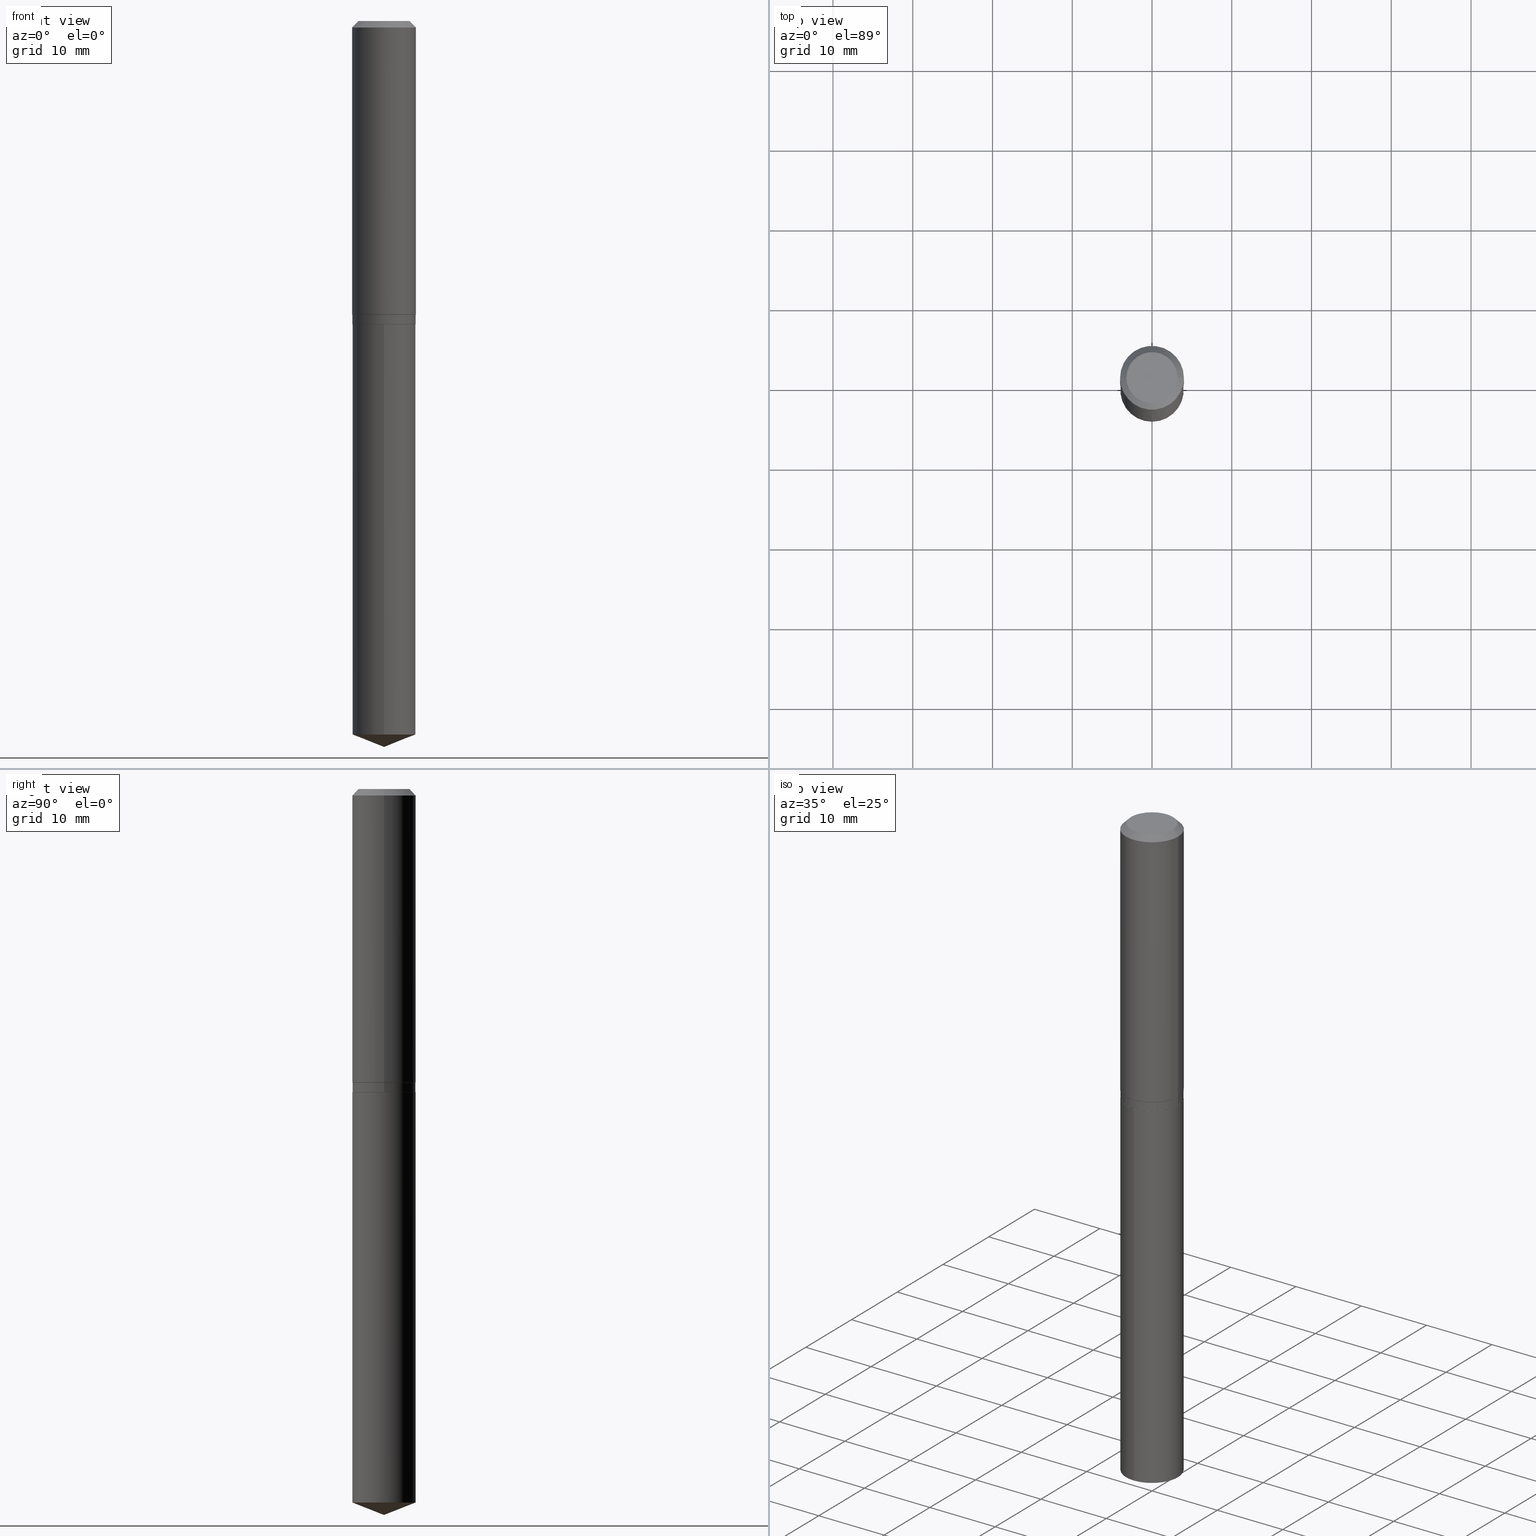
[diagram: canonical four-view strip — front | top / right | iso, engineering-drawing reading convention]
A machine part, canonical four-view strip (front | top / right | iso — engineering-drawing reading convention). The complete STEP part file that produces these views, byte-faithful:
ISO-10303-21;
HEADER;
FILE_DESCRIPTION (( 'STEP AP203' ),
    '1' );
FILE_NAME ('56451.STEP',
    '2024-04-24T17:58:02',
    ( '' ),
    ( '' ),
    'SwSTEP 2.0',
    'SolidWorks 2023',
    '' );
FILE_SCHEMA (( 'CONFIG_CONTROL_DESIGN' ));
ENDSEC;

DATA;
#1 = DIRECTION ( 'NONE',  ( -2.445468806185136597E-29, 3.491481338843145583E-15, 1.000000000000000000 ) ) ;
#2 = APPROVAL_ROLE ( '' ) ;
#3 = AXIS2_PLACEMENT_3D ( 'NONE', #153, #490, #5 ) ;
#4 = DIRECTION ( 'NONE',  ( -2.445483652818804664E-29, 3.491460077618715012E-15, 1.000000000000000000 ) ) ;
#5 = DIRECTION ( 'NONE',  ( 1.000000000000000000, -6.982962677686269077E-15, 0.000000000000000000 ) ) ;
#6 = PRODUCT ( '56451', '56451', '', ( #407 ) ) ;
#7 = DATE_AND_TIME ( #267, #165 ) ;
#8 = DIRECTION ( 'NONE',  ( -2.445468806185136597E-29, 3.491481338843145583E-15, 1.000000000000000000 ) ) ;
#9 = CIRCLE ( 'NONE', #66, 0.1562500000000000000 ) ;
#10 = DIRECTION ( 'NONE',  ( 1.000000000000000000, -6.982962677686265922E-15, 0.000000000000000000 ) ) ;
#11 = PRODUCT_DEFINITION_FORMATION_WITH_SPECIFIED_SOURCE ( 'ANY', '', #6, .NOT_KNOWN. ) ;
#12 = ORIENTED_EDGE ( 'NONE', *, *, #163, .F. ) ;
#13 = CARTESIAN_POINT ( 'NONE',  ( -8.751673825769712260E-28, 1.249491249005610537E-13, 35.78707874015748303 ) ) ;
#14 = EDGE_CURVE ( 'NONE', #363, #253, #29, .T. ) ;
#15 = ORIENTED_EDGE ( 'NONE', *, *, #343, .F. ) ;
#16 = EDGE_CURVE ( 'NONE', #434, #386, #478, .T. ) ;
#17 = CARTESIAN_POINT ( 'NONE',  ( -0.1562500000000000000, -3.949282583492445473E-15, -1.449099999999999833 ) ) ;
#18 = EDGE_LOOP ( 'NONE', ( #482, #49, #147, #128 ) ) ;
#19 = APPROVAL ( #417, 'UNSPECIFIED' ) ;
#20 = CARTESIAN_POINT ( 'NONE',  ( 3.659399521575438742E-29, -5.224652675444883351E-15, -1.496400000000000174 ) ) ;
#21 = AXIS2_PLACEMENT_3D ( 'NONE', #410, #404, #137 ) ;
#22 = ORIENTED_EDGE ( 'NONE', *, *, #415, .F. ) ;
#23 = DIRECTION ( 'NONE',  ( -2.445483652818804664E-29, 3.491460077618715012E-15, 1.000000000000000000 ) ) ;
#24 = DESIGN_CONTEXT ( 'detailed design', #214, 'design' ) ;
#25 = ORIENTED_EDGE ( 'NONE', *, *, #163, .T. ) ;
#26 = DIRECTION ( 'NONE',  ( -6.982962677686265133E-15, -1.000000000000000000, 3.496765431890256920E-15 ) ) ;
#27 = EDGE_LOOP ( 'NONE', ( #402, #465, #400, #398 ) ) ;
#28 = DIRECTION ( 'NONE',  ( 1.000000000000000000, -6.982962677686269077E-15, 0.000000000000000000 ) ) ;
#29 = LINE ( 'NONE', #70, #173 ) ;
#30 = AXIS2_PLACEMENT_3D ( 'NONE', #318, #23, #168 ) ;
#31 = CARTESIAN_POINT ( 'NONE',  ( 3.659399521575439863E-29, -5.224652675444884140E-15, -1.496400000000000396 ) ) ;
#32 = ADVANCED_FACE ( 'NONE', ( #175 ), #469, .T. ) ;
#33 = LINE ( 'NONE', #171, #373 ) ;
#34 = ORIENTED_EDGE ( 'NONE', *, *, #14, .F. ) ;
#35 = EDGE_LOOP ( 'NONE', ( #286, #211, #355, #371 ) ) ;
#36 = CIRCLE ( 'NONE', #180, 0.1575000000000000011 ) ;
#37 = AXIS2_PLACEMENT_3D ( 'NONE', #20, #285, #166 ) ;
#38 = ADVANCED_FACE ( 'NONE', ( #291 ), #255, .T. ) ;
#39 = CARTESIAN_POINT ( 'NONE',  ( 3.659399521575438742E-29, -5.224652675444883351E-15, -1.496400000000000174 ) ) ;
#40 = DIRECTION ( 'NONE',  ( -1.000000000000000000, 6.982962677686265922E-15, 0.000000000000000000 ) ) ;
#41 = DIRECTION ( 'NONE',  ( -2.445468806185136597E-29, 3.491481338843145583E-15, 1.000000000000000000 ) ) ;
#42 = CYLINDRICAL_SURFACE ( 'NONE', #438, 0.1575000000000000844 ) ;
#43 = CIRCLE ( 'NONE', #3, 0.1562500000000000000 ) ;
#44 = AXIS2_PLACEMENT_3D ( 'NONE', #243, #52, #462 ) ;
#45 = DIRECTION ( 'NONE',  ( -2.445468806185136597E-29, 3.491481338843145583E-15, 1.000000000000000000 ) ) ;
#46 = CARTESIAN_POINT ( 'NONE',  ( 8.762168317674783458E-29, -1.250990145810785612E-14, -3.583000000000000185 ) ) ;
#47 = APPROVAL_DATE_TIME ( #87, #252 ) ;
#48 = FACE_OUTER_BOUND ( 'NONE', #18, .T. ) ;
#49 = ORIENTED_EDGE ( 'NONE', *, *, #263, .T. ) ;
#50 = EDGE_CURVE ( 'NONE', #288, #335, #372, .T. ) ;
#51 = CARTESIAN_POINT ( 'NONE',  ( -1.091087918388442491E-15, -0.1562500000000052180, -1.496399999999999730 ) ) ;
#52 = DIRECTION ( 'NONE',  ( -2.445468806185136597E-29, 3.491481338843145583E-15, 1.000000000000000000 ) ) ;
#53 = ORIENTED_EDGE ( 'NONE', *, *, #376, .F. ) ;
#54 = DIRECTION ( 'NONE',  ( -2.445483652818804664E-29, 3.491460077618715012E-15, 1.000000000000000000 ) ) ;
#55 = CARTESIAN_POINT ( 'NONE',  ( 7.703226739483226971E-31, -1.099816621735597538E-16, -0.03150000000000019451 ) ) ;
#56 = AXIS2_PLACEMENT_3D ( 'NONE', #130, #54, #433 ) ;
#57 = CONICAL_SURFACE ( 'NONE', #445, 0.1557499999999999996, 0.7853981633972775267 ) ;
#58 = ORIENTED_EDGE ( 'NONE', *, *, #151, .F. ) ;
#59 = CC_DESIGN_PERSON_AND_ORGANIZATION_ASSIGNMENT ( #454, #117, ( #293 ) ) ;
#60 = APPLICATION_PROTOCOL_DEFINITION ( 'international standard', 'config_control_design', 1994, #80 ) ;
#61 = DIRECTION ( 'NONE',  ( -2.445468806185136597E-29, 3.491481338843145583E-15, 1.000000000000000000 ) ) ;
#62 = ORIENTED_EDGE ( 'NONE', *, *, #450, .T. ) ;
#63 = EDGE_CURVE ( 'NONE', #288, #204, #238, .T. ) ;
#64 = CARTESIAN_POINT ( 'NONE',  ( -0.1562500000000000000, 1.110223024625156540E-15, -7.685836078523291160E-30 ) ) ;
#65 = CARTESIAN_POINT ( 'NONE',  ( -0.1557499999999999996, -4.117982364498528498E-15, -1.496400000000000396 ) ) ;
#66 = AXIS2_PLACEMENT_3D ( 'NONE', #388, #92, #160 ) ;
#67 = CARTESIAN_POINT ( 'NONE',  ( 0.000000000000000000, 0.000000000000000000, 0.000000000000000000 ) ) ;
#68 = EDGE_LOOP ( 'NONE', ( #178, #251 ) ) ;
#69 = MANIFOLD_SOLID_BREP ( 'Body-Move/Copy2[2]', #164 ) ;
#70 = CARTESIAN_POINT ( 'NONE',  ( 8.762123495044533825E-29, -1.250996508870033127E-14, -3.583000000000000185 ) ) ;
#71 = DIRECTION ( 'NONE',  ( 1.000000000000000000, -6.982962677686269077E-15, 0.000000000000000000 ) ) ;
#72 = ORGANIZATION ( 'UNSPECIFIED', 'UNSPECIFIED', '' ) ;
#73 = CARTESIAN_POINT ( 'NONE',  ( 0.1575000000000000011, -1.190510096822576026E-15, -0.03150000000000019451 ) ) ;
#74 = DIRECTION ( 'NONE',  ( 1.000000000000000000, -6.982962677686265922E-15, 0.000000000000000000 ) ) ;
#75 = CARTESIAN_POINT ( 'NONE',  ( 0.1575000000000000844, -1.099816621735587677E-15, 7.679978421878603638E-30 ) ) ;
#76 = ADVANCED_FACE ( 'NONE', ( #443 ), #96, .T. ) ;
#77 = CARTESIAN_POINT ( 'NONE',  ( 0.1260000000000000009, -1.027466422270894443E-15, 3.860086710919128072E-18 ) ) ;
#78 = VECTOR ( 'NONE', #484, 39.37007874015748143 ) ;
#79 = PLANE ( 'NONE',  #129 ) ;
#80 = APPLICATION_CONTEXT ( 'configuration controlled 3d designs of mechanical parts and assemblies' ) ;
#81 = PERSON_AND_ORGANIZATION_ROLE ( 'design_supplier' ) ;
#82 = CARTESIAN_POINT ( 'NONE',  ( -0.1575000000000000011, 9.898349595620272334E-16, -0.03150000000000019451 ) ) ;
#83 = EDGE_CURVE ( 'NONE', #317, #434, #345, .T. ) ;
#84 = APPROVAL_ROLE ( '' ) ;
#85 = CARTESIAN_POINT ( 'NONE',  ( -0.1575000000000001676, -3.936036447621888679E-15, -1.447849999999999637 ) ) ;
#86 = ORIENTED_EDGE ( 'NONE', *, *, #415, .T. ) ;
#87 = DATE_AND_TIME ( #123, #181 ) ;
#88 = VECTOR ( 'NONE', #356, 39.37007874015748143 ) ;
#89 = CARTESIAN_POINT ( 'NONE',  ( 0.1557499999999999996, -6.312249112494520306E-15, -1.496400000000000396 ) ) ;
#90 = CIRCLE ( 'NONE', #229, 0.1260000000000000009 ) ;
#91 = ORIENTED_EDGE ( 'NONE', *, *, #310, .T. ) ;
#92 = DIRECTION ( 'NONE',  ( -2.445468806185136597E-29, 3.491481338843145583E-15, 1.000000000000000000 ) ) ;
#93 = DIRECTION ( 'NONE',  ( -2.445483652818804664E-29, 3.491460077618715012E-15, 1.000000000000000000 ) ) ;
#94 = ORIENTED_EDGE ( 'NONE', *, *, #240, .F. ) ;
#95 = CYLINDRICAL_SURFACE ( 'NONE', #97, 0.1562500000000000000 ) ;
#96 = CONICAL_SURFACE ( 'NONE', #459, 0.1557499999999999996, 0.7853981633972775267 ) ;
#97 = AXIS2_PLACEMENT_3D ( 'NONE', #67, #476, #294 ) ;
#98 = ORIENTED_EDGE ( 'NONE', *, *, #248, .T. ) ;
#99 =( CONVERSION_BASED_UNIT ( 'INCH', #439 ) LENGTH_UNIT ( ) NAMED_UNIT ( #106 ) );
#100 = VERTEX_POINT ( 'NONE', #266 ) ;
#101 = PERSON_AND_ORGANIZATION ( #364, #72 ) ;
#102 = ORIENTED_EDGE ( 'NONE', *, *, #330, .F. ) ;
#103 = ORIENTED_EDGE ( 'NONE', *, *, #330, .T. ) ;
#104 = AXIS2_PLACEMENT_3D ( 'NONE', #39, #4, #149 ) ;
#105 = APPROVAL_PERSON_ORGANIZATION ( #191, #19, #274 ) ;
#106 = DIMENSIONAL_EXPONENTS ( 1.000000000000000000, 0.000000000000000000, 0.000000000000000000, 0.000000000000000000, 0.000000000000000000, 0.000000000000000000, 0.000000000000000000 ) ;
#107 = CARTESIAN_POINT ( 'NONE',  ( 0.1575000000000001676, -6.154957878179636918E-15, -1.447849999999999637 ) ) ;
#108 = ORIENTED_EDGE ( 'NONE', *, *, #185, .F. ) ;
#109 = FACE_OUTER_BOUND ( 'NONE', #408, .T. ) ;
#110 = FACE_OUTER_BOUND ( 'NONE', #242, .T. ) ;
#111 = CIRCLE ( 'NONE', #444, 0.1575000000000001676 ) ;
#112 = AXIS2_PLACEMENT_3D ( 'NONE', #287, #442, #28 ) ;
#113 = CARTESIAN_POINT ( 'NONE',  ( -4.719860820353100843E-47, 6.738710358733633822E-33, 1.930043355456229866E-18 ) ) ;
#114 = PERSON_AND_ORGANIZATION ( #364, #72 ) ;
#115 = EDGE_CURVE ( 'NONE', #434, #284, #217, .T. ) ;
#116 = FACE_OUTER_BOUND ( 'NONE', #162, .T. ) ;
#117 = PERSON_AND_ORGANIZATION_ROLE ( 'creator' ) ;
#118 = DIRECTION ( 'NONE',  ( 1.000000000000000000, -6.982962677686266711E-15, 4.876176775795936353E-29 ) ) ;
#119 = PERSON_AND_ORGANIZATION ( #364, #72 ) ;
#120 = AXIS2_PLACEMENT_3D ( 'NONE', #259, #477, #480 ) ;
#121 = CONICAL_SURFACE ( 'NONE', #187, 99.94676754583984746, 1.195550537616119069 ) ;
#122 = PLANE ( 'NONE',  #341 ) ;
#123 = CALENDAR_DATE ( 2024, 24, 4 ) ;
#124 = DIRECTION ( 'NONE',  ( -2.445483652818804664E-29, 3.491460077618715012E-15, 1.000000000000000000 ) ) ;
#125 = VERTEX_POINT ( 'NONE', #77 ) ;
#126 = PERSON_AND_ORGANIZATION_ROLE ( 'creator' ) ;
#127 = DIRECTION ( 'NONE',  ( 2.445468806185136597E-29, -3.491481338843145583E-15, -1.000000000000000000 ) ) ;
#128 = ORIENTED_EDGE ( 'NONE', *, *, #278, .F. ) ;
#129 = AXIS2_PLACEMENT_3D ( 'NONE', #113, #416, #225 ) ;
#130 = CARTESIAN_POINT ( 'NONE',  ( 3.659399521575438742E-29, -5.224652675444883351E-15, -1.496400000000000174 ) ) ;
#131 = ORIENTED_EDGE ( 'NONE', *, *, #14, .T. ) ;
#132 = CC_DESIGN_DATE_AND_TIME_ASSIGNMENT ( #429, #269, ( #293 ) ) ;
#133 = LINE ( 'NONE', #82, #146 ) ;
#134 = ORIENTED_EDGE ( 'NONE', *, *, #50, .F. ) ;
#135 = DIRECTION ( 'NONE',  ( -2.445468806185136597E-29, 3.491481338843145583E-15, 1.000000000000000000 ) ) ;
#136 = AXIS2_PLACEMENT_3D ( 'NONE', #212, #437, #142 ) ;
#137 = DIRECTION ( 'NONE',  ( 1.000000000000000000, -6.982962677686267499E-15, 4.876176775795936353E-29 ) ) ;
#138 = ADVANCED_FACE ( 'NONE', ( #109 ), #337, .T. ) ;
#139 = DIRECTION ( 'NONE',  ( 1.000000000000000000, 0.000000000000000000, 0.000000000000000000 ) ) ;
#140 = EDGE_LOOP ( 'NONE', ( #12, #131, #292 ) ) ;
#141 = APPROVAL ( #194, 'UNSPECIFIED' ) ;
#142 = DIRECTION ( 'NONE',  ( 6.982962677686265922E-15, 1.000000000000000000, -3.491460077618715012E-15 ) ) ;
#143 = ORIENTED_EDGE ( 'NONE', *, *, #63, .F. ) ;
#144 = FACE_OUTER_BOUND ( 'NONE', #441, .T. ) ;
#145 = EDGE_LOOP ( 'NONE', ( #236, #338, #103, #167 ) ) ;
#146 = VECTOR ( 'NONE', #425, 39.37007874015748143 ) ;
#147 = ORIENTED_EDGE ( 'NONE', *, *, #170, .F. ) ;
#148 = CARTESIAN_POINT ( 'NONE',  ( 3.658176787172346501E-29, -5.222906934775461847E-15, -1.495900000000000230 ) ) ;
#149 = DIRECTION ( 'NONE',  ( -6.982962677686265133E-15, -1.000000000000000000, 3.496765431890256920E-15 ) ) ;
#150 = VECTOR ( 'NONE', #418, 39.37007874015748143 ) ;
#151 = EDGE_CURVE ( 'NONE', #386, #434, #111, .T. ) ;
#152 = COORDINATED_UNIVERSAL_TIME_OFFSET ( 5, 0, .BEHIND. ) ;
#153 = CARTESIAN_POINT ( 'NONE',  ( 3.543728847042880911E-29, -5.059505608117602014E-15, -1.449099999999999833 ) ) ;
#154 = COORDINATED_UNIVERSAL_TIME_OFFSET ( 5, 0, .BEHIND. ) ;
#155 = DIRECTION ( 'NONE',  ( 1.000000000000000000, -6.982962677686267499E-15, 4.876176775795936353E-29 ) ) ;
#156 = PERSON_AND_ORGANIZATION ( #364, #72 ) ;
#157 = DIRECTION ( 'NONE',  ( 1.000000000000000000, -6.982962677686267499E-15, 0.000000000000000000 ) ) ;
#158 = AXIS2_PLACEMENT_3D ( 'NONE', #241, #127, #430 ) ;
#159 = CYLINDRICAL_SURFACE ( 'NONE', #56, 0.1562500000000000000 ) ;
#160 = DIRECTION ( 'NONE',  ( 1.000000000000000000, -6.982962677686269077E-15, 0.000000000000000000 ) ) ;
#161 = DIRECTION ( 'NONE',  ( -2.438088387897960049E-29, 3.491481338843145188E-15, 1.000000000000000000 ) ) ;
#162 = EDGE_LOOP ( 'NONE', ( #446, #86, #102, #207 ) ) ;
#163 = EDGE_CURVE ( 'NONE', #363, #333, #339, .T. ) ;
#164 = CLOSED_SHELL ( 'NONE', ( #76, #401, #183, #449, #483, #220, #221, #38, #138, #256, #301, #466 ) ) ;
#165 = LOCAL_TIME ( 13, 58, 2.000000000000000000, #234 ) ;
#166 = DIRECTION ( 'NONE',  ( -6.982962677686265133E-15, -1.000000000000000000, 3.496765431890256920E-15 ) ) ;
#167 = ORIENTED_EDGE ( 'NONE', *, *, #310, .F. ) ;
#168 = DIRECTION ( 'NONE',  ( -6.982962677686265133E-15, -1.000000000000000000, 3.496765431890256920E-15 ) ) ;
#169 = ORIENTED_EDGE ( 'NONE', *, *, #248, .F. ) ;
#170 = EDGE_CURVE ( 'NONE', #245, #193, #249, .T. ) ;
#171 = CARTESIAN_POINT ( 'NONE',  ( 0.1562500000000000000, -1.091087918388479174E-15, 7.619026212181150377E-30 ) ) ;
#172 = VERTEX_POINT ( 'NONE', #262 ) ;
#173 = VECTOR ( 'NONE', #215, 39.37007874015748143 ) ;
#174 = CIRCLE ( 'NONE', #299, 0.1562500000000000000 ) ;
#175 = FACE_OUTER_BOUND ( 'NONE', #392, .T. ) ;
#176 = DIRECTION ( 'NONE',  ( -2.445468806185136597E-29, 3.491481338843145583E-15, 1.000000000000000000 ) ) ;
#177 = CARTESIAN_POINT ( 'NONE',  ( 3.659399521575439863E-29, -5.224652675444884140E-15, -1.496400000000000396 ) ) ;
#178 = ORIENTED_EDGE ( 'NONE', *, *, #170, .T. ) ;
#179 = ORIENTED_EDGE ( 'NONE', *, *, #277, .T. ) ;
#180 = AXIS2_PLACEMENT_3D ( 'NONE', #55, #315, #360 ) ;
#181 = LOCAL_TIME ( 13, 58, 2.000000000000000000, #226 ) ;
#182 = CARTESIAN_POINT ( 'NONE',  ( 0.000000000000000000, 0.000000000000000000, 0.000000000000000000 ) ) ;
#183 = ADVANCED_FACE ( 'NONE', ( #116 ), #42, .T. ) ;
#184 = CARTESIAN_POINT ( 'NONE',  ( 0.1557499999999999996, -6.312249112494520306E-15, -1.496400000000000396 ) ) ;
#185 = EDGE_CURVE ( 'NONE', #100, #125, #218, .T. ) ;
#186 = DIRECTION ( 'NONE',  ( 1.000000000000000000, -6.982962677686265922E-15, 0.000000000000000000 ) ) ;
#187 = AXIS2_PLACEMENT_3D ( 'NONE', #13, #124, #323 ) ;
#188 = CALENDAR_DATE ( 2024, 24, 4 ) ;
#189 = CARTESIAN_POINT ( 'NONE',  ( 3.659399521575439863E-29, -5.224652675444884140E-15, -1.496400000000000396 ) ) ;
#190 = DIRECTION ( 'NONE',  ( -2.445483652818804384E-29, 3.491460077618715012E-15, 1.000000000000000000 ) ) ;
#191 = PERSON_AND_ORGANIZATION ( #364, #72 ) ;
#192 = LINE ( 'NONE', #89, #88 ) ;
#193 = VERTEX_POINT ( 'NONE', #344 ) ;
#194 = APPROVAL_STATUS ( 'not_yet_approved' ) ;
#195 = CARTESIAN_POINT ( 'NONE',  ( 7.703226739483226971E-31, -1.099816621735597538E-16, -0.03150000000000019451 ) ) ;
#196 = CYLINDRICAL_SURFACE ( 'NONE', #37, 0.1562500000000000000 ) ;
#197 = VERTEX_POINT ( 'NONE', #453 ) ;
#198 = FACE_OUTER_BOUND ( 'NONE', #463, .T. ) ;
#199 = AXIS2_PLACEMENT_3D ( 'NONE', #203, #328, #139 ) ;
#200 = LINE ( 'NONE', #51, #281 ) ;
#201 = ORIENTED_EDGE ( 'NONE', *, *, #423, .F. ) ;
#202 = EDGE_CURVE ( 'NONE', #317, #197, #43, .T. ) ;
#203 = CARTESIAN_POINT ( 'NONE',  ( 0.000000000000000000, 0.000000000000000000, 0.000000000000000000 ) ) ;
#204 = VERTEX_POINT ( 'NONE', #184 ) ;
#205 = CC_DESIGN_PERSON_AND_ORGANIZATION_ASSIGNMENT ( #230, #126, ( #11 ) ) ;
#206 =( LENGTH_UNIT ( ) NAMED_UNIT ( * ) SI_UNIT ( $, .METRE. ) );
#207 = ORIENTED_EDGE ( 'NONE', *, *, #115, .F. ) ;
#208 = VECTOR ( 'NONE', #264, 39.37007874015748854 ) ;
#209 = CARTESIAN_POINT ( 'NONE',  ( 8.611629832048654123E-29, -1.229503910156575525E-14, -3.521451488185165957 ) ) ;
#210 = CC_DESIGN_SECURITY_CLASSIFICATION ( #250, ( #11 ) ) ;
#211 = ORIENTED_EDGE ( 'NONE', *, *, #414, .T. ) ;
#212 = CARTESIAN_POINT ( 'NONE',  ( 3.659399521575438742E-29, -5.224652675444883351E-15, -1.496400000000000174 ) ) ;
#213 = ORIENTED_EDGE ( 'NONE', *, *, #331, .T. ) ;
#214 = APPLICATION_CONTEXT ( 'configuration controlled 3d designs of mechanical parts and assemblies' ) ;
#215 = DIRECTION ( 'NONE',  ( -6.497071151882118258E-15, -0.9304175679820244627, 0.3665012267242974686 ) ) ;
#216 = UNCERTAINTY_MEASURE_WITH_UNIT (LENGTH_MEASURE( 1.000000000000000082E-05 ), #99, 'distance_accuracy_value', 'NONE');
#217 = LINE ( 'NONE', #75, #150 ) ;
#218 = CIRCLE ( 'NONE', #379, 0.1260000000000000009 ) ;
#219 = CONICAL_SURFACE ( 'NONE', #112, 0.1562500000000000000, 0.7853981633974482790 ) ;
#220 = ADVANCED_FACE ( 'NONE', ( #312 ), #457, .T. ) ;
#221 = ADVANCED_FACE ( 'NONE', ( #110 ), #305, .T. ) ;
#222 = DIRECTION ( 'NONE',  ( 0.7071067811865452413, -7.319954787623248157E-15, -0.7071067811865497932 ) ) ;
#223 = DIRECTION ( 'NONE',  ( -2.445483652818804664E-29, 3.491460077618715012E-15, 1.000000000000000000 ) ) ;
#224 = CC_DESIGN_PERSON_AND_ORGANIZATION_ASSIGNMENT ( #156, #387, ( #250 ) ) ;
#225 = DIRECTION ( 'NONE',  ( -1.000000000000000000, 6.982962677686265922E-15, -4.876176775795935793E-29 ) ) ;
#226 = COORDINATED_UNIVERSAL_TIME_OFFSET ( 5, 0, .BEHIND. ) ;
#227 = CARTESIAN_POINT ( 'NONE',  ( 7.703226739483226971E-31, -1.099816621735597538E-16, -0.03150000000000019451 ) ) ;
#228 = CLOSED_SHELL ( 'NONE', ( #336, #32, #365, #316, #467 ) ) ;
#229 = AXIS2_PLACEMENT_3D ( 'NONE', #326, #135, #254 ) ;
#230 = PERSON_AND_ORGANIZATION ( #364, #72 ) ;
#231 = CARTESIAN_POINT ( 'NONE',  ( 1.110223024625193025E-15, 0.1562499999999947820, -1.496400000000000841 ) ) ;
#232 = SECURITY_CLASSIFICATION_LEVEL ( 'unclassified' ) ;
#233 = CARTESIAN_POINT ( 'NONE',  ( 0.1575000000000000011, -1.209798283909146741E-15, -0.03150000000000019451 ) ) ;
#234 = COORDINATED_UNIVERSAL_TIME_OFFSET ( 5, 0, .BEHIND. ) ;
#235 = DIRECTION ( 'NONE',  ( 1.000000000000000000, -6.982962677686265922E-15, 4.876176775795935793E-29 ) ) ;
#236 = ORIENTED_EDGE ( 'NONE', *, *, #450, .F. ) ;
#237 = CALENDAR_DATE ( 2024, 24, 4 ) ;
#238 = CIRCLE ( 'NONE', #257, 0.1557499999999999996 ) ;
#239 = LOCAL_TIME ( 13, 58, 2.000000000000000000, #346 ) ;
#240 = EDGE_CURVE ( 'NONE', #125, #284, #270, .T. ) ;
#241 = CARTESIAN_POINT ( 'NONE',  ( 7.703226739483226971E-31, -1.099816621735597538E-16, -0.03150000000000019451 ) ) ;
#242 = EDGE_LOOP ( 'NONE', ( #431, #447, #471, #58 ) ) ;
#243 = CARTESIAN_POINT ( 'NONE',  ( 3.659399521575439863E-29, -5.224652675444884140E-15, -1.496400000000000396 ) ) ;
#244 = PRODUCT_DEFINITION_SHAPE ( 'NONE', 'NONE',  #293 ) ;
#245 = VERTEX_POINT ( 'NONE', #303 ) ;
#246 = DIRECTION ( 'NONE',  ( -6.982962677686265133E-15, -1.000000000000000000, 3.496765431890256920E-15 ) ) ;
#247 = ORIENTED_EDGE ( 'NONE', *, *, #432, .F. ) ;
#248 = EDGE_CURVE ( 'NONE', #335, #488, #420, .T. ) ;
#249 = CIRCLE ( 'NONE', #104, 0.1562500000000000000 ) ;
#250 = SECURITY_CLASSIFICATION ( '', '', #232 ) ;
#251 = ORIENTED_EDGE ( 'NONE', *, *, #394, .T. ) ;
#252 = APPROVAL ( #272, 'UNSPECIFIED' ) ;
#253 = VERTEX_POINT ( 'NONE', #374 ) ;
#254 = DIRECTION ( 'NONE',  ( 1.000000000000000000, -6.982962677686265922E-15, 4.876281427513067258E-29 ) ) ;
#255 = CYLINDRICAL_SURFACE ( 'NONE', #21, 0.1575000000000000844 ) ;
#256 = ADVANCED_FACE ( 'NONE', ( #340 ), #79, .F. ) ;
#257 = AXIS2_PLACEMENT_3D ( 'NONE', #31, #176, #295 ) ;
#258 = CIRCLE ( 'NONE', #30, 0.1562500000000000000 ) ;
#259 = CARTESIAN_POINT ( 'NONE',  ( -8.751673825769712260E-28, 1.249491249005610537E-13, 35.78707874015748303 ) ) ;
#260 = FACE_OUTER_BOUND ( 'NONE', #280, .T. ) ;
#261 = CARTESIAN_POINT ( 'NONE',  ( 3.540672011035148907E-29, -5.055141256444047071E-15, -1.447849999999999637 ) ) ;
#262 = CARTESIAN_POINT ( 'NONE',  ( -0.1575000000000000011, -1.463456650486645070E-15, -0.03150000000000019451 ) ) ;
#263 = EDGE_CURVE ( 'NONE', #333, #193, #377, .T. ) ;
#264 = DIRECTION ( 'NONE',  ( 0.7071067811865474617, -2.468850131082256666E-15, 0.7071067811865474617 ) ) ;
#265 = VECTOR ( 'NONE', #222, 39.37007874015748143 ) ;
#266 = CARTESIAN_POINT ( 'NONE',  ( -0.1260000000000000009, 9.348441284752484904E-16, 3.860086710906114178E-18 ) ) ;
#267 = CALENDAR_DATE ( 2024, 24, 4 ) ;
#268 = DIRECTION ( 'NONE',  ( -2.445468806185136597E-29, 3.491481338843145583E-15, 1.000000000000000000 ) ) ;
#269 = DATE_TIME_ROLE ( 'creation_date' ) ;
#270 = LINE ( 'NONE', #73, #265 ) ;
#271 = APPROVAL_PERSON_ORGANIZATION ( #119, #252, #84 ) ;
#272 = APPROVAL_STATUS ( 'not_yet_approved' ) ;
#273 = DIRECTION ( 'NONE',  ( -2.445483652818804384E-29, 3.491460077618715012E-15, 1.000000000000000000 ) ) ;
#274 = APPROVAL_ROLE ( '' ) ;
#275 = DIRECTION ( 'NONE',  ( 1.000000000000000000, -6.982962677686269077E-15, 0.000000000000000000 ) ) ;
#276 = ORIENTED_EDGE ( 'NONE', *, *, #63, .T. ) ;
#277 = EDGE_CURVE ( 'NONE', #488, #335, #9, .T. ) ;
#278 = EDGE_CURVE ( 'NONE', #253, #245, #200, .T. ) ;
#279 = DIRECTION ( 'NONE',  ( -2.445468806185136597E-29, 3.491481338843145583E-15, 1.000000000000000000 ) ) ;
#280 = EDGE_LOOP ( 'NONE', ( #134, #276, #475, #169 ) ) ;
#281 = VECTOR ( 'NONE', #273, 39.37007874015748143 ) ;
#282 = CC_DESIGN_APPROVAL ( #141, ( #11 ) ) ;
#283 = CARTESIAN_POINT ( 'NONE',  ( 1.826596063597053944E-29, -7.849331543964437645E-15, -1.496400000000000396 ) ) ;
#284 = VERTEX_POINT ( 'NONE', #233 ) ;
#285 = DIRECTION ( 'NONE',  ( -2.445483652818804664E-29, 3.491460077618715012E-15, 1.000000000000000000 ) ) ;
#286 = ORIENTED_EDGE ( 'NONE', *, *, #202, .T. ) ;
#287 = CARTESIAN_POINT ( 'NONE',  ( 3.543728847042880911E-29, -5.059505608117602014E-15, -1.449099999999999833 ) ) ;
#288 = VERTEX_POINT ( 'NONE', #396 ) ;
#289 = CC_DESIGN_APPROVAL ( #19, ( #250 ) ) ;
#290 = FACE_OUTER_BOUND ( 'NONE', #35, .T. ) ;
#291 = FACE_OUTER_BOUND ( 'NONE', #473, .T. ) ;
#292 = ORIENTED_EDGE ( 'NONE', *, *, #383, .F. ) ;
#293 = PRODUCT_DEFINITION ( 'UNKNOWN', '', #11, #24 ) ;
#294 = DIRECTION ( 'NONE',  ( 1.000000000000000000, -6.982962677686266711E-15, 4.876176775795936353E-29 ) ) ;
#295 = DIRECTION ( 'NONE',  ( 1.000000000000000000, -6.982962677686265922E-15, 0.000000000000000000 ) ) ;
#296 = ADVANCED_BREP_SHAPE_REPRESENTATION ( '56451', ( #397, #69, #199 ), #487 ) ;
#297 = AXIS2_PLACEMENT_3D ( 'NONE', #313, #413, #71 ) ;
#298 = CARTESIAN_POINT ( 'NONE',  ( 0.1562500000000000000, -6.313994853163941810E-15, -1.495900000000000230 ) ) ;
#299 = AXIS2_PLACEMENT_3D ( 'NONE', #435, #93, #246 ) ;
#300 = ORIENTED_EDGE ( 'NONE', *, *, #50, .T. ) ;
#301 = ADVANCED_FACE ( 'NONE', ( #198 ), #122, .F. ) ;
#302 = ORIENTED_EDGE ( 'NONE', *, *, #347, .F. ) ;
#303 = CARTESIAN_POINT ( 'NONE',  ( -1.091087918388442491E-15, -0.1562500000000052180, -1.496399999999999730 ) ) ;
#304 = PRODUCT_RELATED_PRODUCT_CATEGORY ( 'detail', '', ( #6 ) ) ;
#305 = CONICAL_SURFACE ( 'NONE', #297, 0.1562500000000000000, 0.7853981633974482790 ) ;
#306 = CARTESIAN_POINT ( 'NONE',  ( -9.439721640706201686E-47, 1.347742071746726764E-32, 3.860086710912459732E-18 ) ) ;
#307 = AXIS2_PLACEMENT_3D ( 'NONE', #182, #1, #118 ) ;
#308 = CARTESIAN_POINT ( 'NONE',  ( 0.1562500000000000000, -6.150593526506081976E-15, -1.449099999999999833 ) ) ;
#309 = CALENDAR_DATE ( 2024, 24, 4 ) ;
#310 = EDGE_CURVE ( 'NONE', #100, #172, #133, .T. ) ;
#311 = CC_DESIGN_DATE_AND_TIME_ASSIGNMENT ( #7, #419, ( #250 ) ) ;
#312 = FACE_OUTER_BOUND ( 'NONE', #324, .T. ) ;
#313 = CARTESIAN_POINT ( 'NONE',  ( 3.543728847042880911E-29, -5.059505608117602014E-15, -1.449099999999999833 ) ) ;
#314 = CIRCLE ( 'NONE', #351, 0.1562500000000000000 ) ;
#315 = DIRECTION ( 'NONE',  ( -2.445468806185136597E-29, 3.491481338843145583E-15, 1.000000000000000000 ) ) ;
#316 = ADVANCED_FACE ( 'NONE', ( #385 ), #159, .T. ) ;
#317 = VERTEX_POINT ( 'NONE', #427 ) ;
#318 = CARTESIAN_POINT ( 'NONE',  ( 3.659399521575438742E-29, -5.224652675444883351E-15, -1.496400000000000174 ) ) ;
#319 = DIRECTION ( 'NONE',  ( -0.7071067811865474617, 7.493145998870352582E-15, 0.7071067811865474617 ) ) ;
#320 = ORIENTED_EDGE ( 'NONE', *, *, #331, .F. ) ;
#321 = VECTOR ( 'NONE', #190, 39.37007874015748143 ) ;
#322 = CC_DESIGN_APPROVAL ( #252, ( #293 ) ) ;
#323 = DIRECTION ( 'NONE',  ( -6.982962677686265922E-15, -1.000000000000000000, 3.498627837350008561E-15 ) ) ;
#324 = EDGE_LOOP ( 'NONE', ( #247, #98, #350, #53 ) ) ;
#325 = PLANE ( 'NONE',  #136 ) ;
#326 = CARTESIAN_POINT ( 'NONE',  ( -9.439721640706201686E-47, 1.347742071746726764E-32, 3.860086710912459732E-18 ) ) ;
#327 = DIRECTION ( 'NONE',  ( 1.000000000000000000, -6.982962677686267499E-15, 0.000000000000000000 ) ) ;
#328 = DIRECTION ( 'NONE',  ( 0.000000000000000000, 0.000000000000000000, 1.000000000000000000 ) ) ;
#329 = ORIENTED_EDGE ( 'NONE', *, *, #489, .F. ) ;
#330 = EDGE_CURVE ( 'NONE', #284, #172, #486, .T. ) ;
#331 = EDGE_CURVE ( 'NONE', #172, #284, #36, .T. ) ;
#332 = CARTESIAN_POINT ( 'NONE',  ( -0.1575000000000000844, 1.119104808822158392E-15, -7.747322767151481189E-30 ) ) ;
#333 = VERTEX_POINT ( 'NONE', #354 ) ;
#334 = PERSON_AND_ORGANIZATION_ROLE ( 'design_owner' ) ;
#335 = VERTEX_POINT ( 'NONE', #352 ) ;
#336 = ADVANCED_FACE ( 'NONE', ( #48 ), #196, .T. ) ;
#337 = CONICAL_SURFACE ( 'NONE', #349, 0.1575000000000000011, 0.7853981633974450594 ) ;
#338 = ORIENTED_EDGE ( 'NONE', *, *, #240, .T. ) ;
#339 = LINE ( 'NONE', #46, #405 ) ;
#340 = FACE_OUTER_BOUND ( 'NONE', #357, .T. ) ;
#341 = AXIS2_PLACEMENT_3D ( 'NONE', #283, #161, #235 ) ;
#342 = CARTESIAN_POINT ( 'NONE',  ( 3.540672011035148907E-29, -5.055141256444047071E-15, -1.447849999999999637 ) ) ;
#343 = EDGE_CURVE ( 'NONE', #204, #288, #479, .T. ) ;
#344 = CARTESIAN_POINT ( 'NONE',  ( 1.110223024625242723E-15, 0.1562499999999947820, -1.496400000000000841 ) ) ;
#345 = LINE ( 'NONE', #308, #208 ) ;
#346 = COORDINATED_UNIVERSAL_TIME_OFFSET ( 5, 0, .BEHIND. ) ;
#347 = EDGE_CURVE ( 'NONE', #204, #488, #192, .T. ) ;
#348 = CARTESIAN_POINT ( 'NONE',  ( 8.762167928049776641E-29, -1.250990145810785612E-14, -3.583000000000000185 ) ) ;
#349 = AXIS2_PLACEMENT_3D ( 'NONE', #227, #380, #40 ) ;
#350 = ORIENTED_EDGE ( 'NONE', *, *, #423, .T. ) ;
#351 = AXIS2_PLACEMENT_3D ( 'NONE', #460, #472, #275 ) ;
#352 = CARTESIAN_POINT ( 'NONE',  ( -0.1562500000000000000, -4.030983246821375785E-15, -1.495900000000000230 ) ) ;
#353 = ORIENTED_EDGE ( 'NONE', *, *, #277, .F. ) ;
#354 = CARTESIAN_POINT ( 'NONE',  ( 1.110223024625242329E-15, 0.1562499999999876765, -3.521451488185166401 ) ) ;
#355 = ORIENTED_EDGE ( 'NONE', *, *, #16, .F. ) ;
#356 = DIRECTION ( 'NONE',  ( 0.7071067811864267805, -2.468850131080992517E-15, 0.7071067811866682540 ) ) ;
#357 = EDGE_LOOP ( 'NONE', ( #436, #62 ) ) ;
#358 = AXIS2_PLACEMENT_3D ( 'NONE', #148, #375, #421 ) ;
#359 = VECTOR ( 'NONE', #362, 39.37007874015748143 ) ;
#360 = DIRECTION ( 'NONE',  ( 1.000000000000000000, -6.982962677686265922E-15, 0.000000000000000000 ) ) ;
#361 = EDGE_LOOP ( 'NONE', ( #440, #300, #353, #302 ) ) ;
#362 = DIRECTION ( 'NONE',  ( -2.445468806185136877E-29, 3.491481338843145188E-15, 1.000000000000000000 ) ) ;
#363 = VERTEX_POINT ( 'NONE', #348 ) ;
#364 = PERSON ( 'UNSPECIFIED', 'UNSPECIFIED', 'UNSPECIFIED', ('UNSPECIFIED'), ('UNSPECIFIED'), ('UNSPECIFIED') ) ;
#365 = ADVANCED_FACE ( 'NONE', ( #393 ), #121, .T. ) ;
#366 = ORIENTED_EDGE ( 'NONE', *, *, #432, .T. ) ;
#367 = LOCAL_TIME ( 13, 58, 2.000000000000000000, #154 ) ;
#368 = APPLICATION_PROTOCOL_DEFINITION ( 'international standard', 'config_control_design', 1994, #214 ) ;
#369 = DIRECTION ( 'NONE',  ( -0.7071067811864267805, 7.493145998869918709E-15, 0.7071067811866682540 ) ) ;
#370 = FACE_OUTER_BOUND ( 'NONE', #68, .T. ) ;
#371 = ORIENTED_EDGE ( 'NONE', *, *, #83, .F. ) ;
#372 = LINE ( 'NONE', #65, #412 ) ;
#373 = VECTOR ( 'NONE', #474, 39.37007874015748143 ) ;
#374 = CARTESIAN_POINT ( 'NONE',  ( -1.091087918388392596E-15, -0.1562500000000122402, -3.521451488185165513 ) ) ;
#375 = DIRECTION ( 'NONE',  ( -2.445468806185136597E-29, 3.491481338843145583E-15, 1.000000000000000000 ) ) ;
#376 = EDGE_CURVE ( 'NONE', #197, #317, #314, .T. ) ;
#377 = LINE ( 'NONE', #231, #321 ) ;
#378 = CC_DESIGN_PERSON_AND_ORGANIZATION_ASSIGNMENT ( #101, #334, ( #6 ) ) ;
#379 = AXIS2_PLACEMENT_3D ( 'NONE', #306, #411, #448 ) ;
#380 = DIRECTION ( 'NONE',  ( 2.445468806185136597E-29, -3.491481338843145583E-15, -1.000000000000000000 ) ) ;
#381 = APPROVAL_DATE_TIME ( #390, #19 ) ;
#382 = CARTESIAN_POINT ( 'NONE',  ( 0.000000000000000000, 0.000000000000000000, 0.000000000000000000 ) ) ;
#383 = EDGE_CURVE ( 'NONE', #333, #253, #174, .T. ) ;
#384 = DATE_AND_TIME ( #237, #452 ) ;
#385 = FACE_OUTER_BOUND ( 'NONE', #27, .T. ) ;
#386 = VERTEX_POINT ( 'NONE', #85 ) ;
#387 = PERSON_AND_ORGANIZATION_ROLE ( 'classification_officer' ) ;
#388 = CARTESIAN_POINT ( 'NONE',  ( 3.658176787172346501E-29, -5.222906934775461847E-15, -1.495900000000000230 ) ) ;
#389 = CONICAL_SURFACE ( 'NONE', #158, 0.1575000000000000011, 0.7853981633974450594 ) ;
#390 = DATE_AND_TIME ( #309, #239 ) ;
#391 = LINE ( 'NONE', #17, #470 ) ;
#392 = EDGE_LOOP ( 'NONE', ( #34, #25, #329 ) ) ;
#393 = FACE_OUTER_BOUND ( 'NONE', #140, .T. ) ;
#394 = EDGE_CURVE ( 'NONE', #193, #245, #258, .T. ) ;
#395 = ORIENTED_EDGE ( 'NONE', *, *, #115, .T. ) ;
#396 = CARTESIAN_POINT ( 'NONE',  ( -0.1557499999999999996, -4.115333137324417297E-15, -1.496400000000000396 ) ) ;
#397 = MANIFOLD_SOLID_BREP ( 'Body-Move/Copy2[1]', #228 ) ;
#398 = ORIENTED_EDGE ( 'NONE', *, *, #394, .F. ) ;
#399 = AXIS2_PLACEMENT_3D ( 'NONE', #195, #279, #10 ) ;
#400 = ORIENTED_EDGE ( 'NONE', *, *, #278, .T. ) ;
#401 = ADVANCED_FACE ( 'NONE', ( #464 ), #389, .T. ) ;
#402 = ORIENTED_EDGE ( 'NONE', *, *, #263, .F. ) ;
#403 = LINE ( 'NONE', #64, #359 ) ;
#404 = DIRECTION ( 'NONE',  ( -2.445468806185136597E-29, 3.491481338843145583E-15, 1.000000000000000000 ) ) ;
#405 = VECTOR ( 'NONE', #455, 39.37007874015748143 ) ;
#406 = AXIS2_PLACEMENT_3D ( 'NONE', #209, #223, #26 ) ;
#407 = MECHANICAL_CONTEXT ( 'NONE', #80, 'mechanical' ) ;
#408 = EDGE_LOOP ( 'NONE', ( #94, #108, #91, #213 ) ) ;
#409 =( NAMED_UNIT ( * ) SI_UNIT ( $, .STERADIAN. ) SOLID_ANGLE_UNIT ( ) );
#410 = CARTESIAN_POINT ( 'NONE',  ( 0.000000000000000000, 0.000000000000000000, 0.000000000000000000 ) ) ;
#411 = DIRECTION ( 'NONE',  ( -2.445468806185136597E-29, 3.491481338843145583E-15, 1.000000000000000000 ) ) ;
#412 = VECTOR ( 'NONE', #369, 39.37007874015748143 ) ;
#413 = DIRECTION ( 'NONE',  ( -2.445468806185136597E-29, 3.491481338843145583E-15, 1.000000000000000000 ) ) ;
#414 = EDGE_CURVE ( 'NONE', #197, #386, #391, .T. ) ;
#415 = EDGE_CURVE ( 'NONE', #386, #172, #468, .T. ) ;
#416 = DIRECTION ( 'NONE',  ( 2.438088387897960049E-29, -3.491481338843145188E-15, -1.000000000000000000 ) ) ;
#417 = APPROVAL_STATUS ( 'not_yet_approved' ) ;
#418 = DIRECTION ( 'NONE',  ( -2.445468806185136877E-29, 3.491481338843145188E-15, 1.000000000000000000 ) ) ;
#419 = DATE_TIME_ROLE ( 'classification_date' ) ;
#420 = CIRCLE ( 'NONE', #358, 0.1562500000000000000 ) ;
#421 = DIRECTION ( 'NONE',  ( 1.000000000000000000, -6.982962677686269077E-15, 0.000000000000000000 ) ) ;
#422 = CIRCLE ( 'NONE', #406, 0.1562500000000000000 ) ;
#423 = EDGE_CURVE ( 'NONE', #488, #317, #33, .T. ) ;
#424 = PERSON_AND_ORGANIZATION ( #364, #72 ) ;
#425 = DIRECTION ( 'NONE',  ( -0.7071067811865452413, 2.468850131082233000E-15, -0.7071067811865497932 ) ) ;
#426 = CC_DESIGN_PERSON_AND_ORGANIZATION_ASSIGNMENT ( #424, #81, ( #11 ) ) ;
#427 = CARTESIAN_POINT ( 'NONE',  ( 0.1562500000000000000, -6.150593526506081976E-15, -1.449099999999999833 ) ) ;
#428 = ORIENTED_EDGE ( 'NONE', *, *, #151, .T. ) ;
#429 = DATE_AND_TIME ( #188, #367 ) ;
#430 = DIRECTION ( 'NONE',  ( -1.000000000000000000, 6.982962677686265922E-15, 0.000000000000000000 ) ) ;
#431 = ORIENTED_EDGE ( 'NONE', *, *, #414, .F. ) ;
#432 = EDGE_CURVE ( 'NONE', #335, #197, #403, .T. ) ;
#433 = DIRECTION ( 'NONE',  ( -6.982962677686265133E-15, -1.000000000000000000, 3.496765431890256920E-15 ) ) ;
#434 = VERTEX_POINT ( 'NONE', #107 ) ;
#435 = CARTESIAN_POINT ( 'NONE',  ( 8.611629832048654123E-29, -1.229503910156575525E-14, -3.521451488185165957 ) ) ;
#436 = ORIENTED_EDGE ( 'NONE', *, *, #185, .T. ) ;
#437 = DIRECTION ( 'NONE',  ( 2.445483652818804384E-29, -3.491460077618715012E-15, -1.000000000000000000 ) ) ;
#438 = AXIS2_PLACEMENT_3D ( 'NONE', #382, #45, #155 ) ;
#439 = LENGTH_MEASURE_WITH_UNIT ( LENGTH_MEASURE( 0.02539999999999999897 ), #206 );
#440 = ORIENTED_EDGE ( 'NONE', *, *, #343, .T. ) ;
#441 = EDGE_LOOP ( 'NONE', ( #179, #366, #485, #201 ) ) ;
#442 = DIRECTION ( 'NONE',  ( -2.445468806185136597E-29, 3.491481338843145583E-15, 1.000000000000000000 ) ) ;
#443 = FACE_OUTER_BOUND ( 'NONE', #361, .T. ) ;
#444 = AXIS2_PLACEMENT_3D ( 'NONE', #342, #8, #157 ) ;
#445 = AXIS2_PLACEMENT_3D ( 'NONE', #177, #41, #74 ) ;
#446 = ORIENTED_EDGE ( 'NONE', *, *, #16, .T. ) ;
#447 = ORIENTED_EDGE ( 'NONE', *, *, #376, .T. ) ;
#448 = DIRECTION ( 'NONE',  ( 1.000000000000000000, -6.982962677686265922E-15, 4.876281427513067258E-29 ) ) ;
#449 = ADVANCED_FACE ( 'NONE', ( #290 ), #219, .T. ) ;
#450 = EDGE_CURVE ( 'NONE', #125, #100, #90, .T. ) ;
#451 = AXIS2_PLACEMENT_3D ( 'NONE', #261, #61, #327 ) ;
#452 = LOCAL_TIME ( 13, 58, 2.000000000000000000, #152 ) ;
#453 = CARTESIAN_POINT ( 'NONE',  ( -0.1562500000000000000, -4.030983246821375785E-15, -1.449099999999999833 ) ) ;
#454 = PERSON_AND_ORGANIZATION ( #364, #72 ) ;
#455 = DIRECTION ( 'NONE',  ( 6.611014441532066589E-15, 0.9304175679820270162, 0.3665012267242909183 ) ) ;
#456 = APPROVAL_DATE_TIME ( #384, #141 ) ;
#457 = CYLINDRICAL_SURFACE ( 'NONE', #307, 0.1562500000000000000 ) ;
#458 = SHAPE_DEFINITION_REPRESENTATION ( #244, #296 ) ;
#459 = AXIS2_PLACEMENT_3D ( 'NONE', #189, #268, #186 ) ;
#460 = CARTESIAN_POINT ( 'NONE',  ( 3.543728847042880911E-29, -5.059505608117602014E-15, -1.449099999999999833 ) ) ;
#461 = APPROVAL_PERSON_ORGANIZATION ( #114, #141, #2 ) ;
#462 = DIRECTION ( 'NONE',  ( 1.000000000000000000, -6.982962677686265922E-15, 0.000000000000000000 ) ) ;
#463 = EDGE_LOOP ( 'NONE', ( #15, #143 ) ) ;
#464 = FACE_OUTER_BOUND ( 'NONE', #145, .T. ) ;
#465 = ORIENTED_EDGE ( 'NONE', *, *, #383, .T. ) ;
#466 = ADVANCED_FACE ( 'NONE', ( #260 ), #57, .T. ) ;
#467 = ADVANCED_FACE ( 'NONE', ( #370 ), #325, .F. ) ;
#468 = LINE ( 'NONE', #332, #78 ) ;
#469 = CONICAL_SURFACE ( 'NONE', #120, 99.94676754583984746, 1.195550537616119069 ) ;
#470 = VECTOR ( 'NONE', #319, 39.37007874015748854 ) ;
#471 = ORIENTED_EDGE ( 'NONE', *, *, #83, .T. ) ;
#472 = DIRECTION ( 'NONE',  ( -2.445468806185136597E-29, 3.491481338843145583E-15, 1.000000000000000000 ) ) ;
#473 = EDGE_LOOP ( 'NONE', ( #22, #428, #395, #320 ) ) ;
#474 = DIRECTION ( 'NONE',  ( -2.445468806185136877E-29, 3.491481338843145188E-15, 1.000000000000000000 ) ) ;
#475 = ORIENTED_EDGE ( 'NONE', *, *, #347, .T. ) ;
#476 = DIRECTION ( 'NONE',  ( -2.445468806185136597E-29, 3.491481338843145583E-15, 1.000000000000000000 ) ) ;
#477 = DIRECTION ( 'NONE',  ( -2.445483652818804664E-29, 3.491460077618715012E-15, 1.000000000000000000 ) ) ;
#478 = CIRCLE ( 'NONE', #451, 0.1575000000000001676 ) ;
#479 = CIRCLE ( 'NONE', #44, 0.1557499999999999996 ) ;
#480 = DIRECTION ( 'NONE',  ( -6.982962677686265922E-15, -1.000000000000000000, 3.498627837350008561E-15 ) ) ;
#481 =( NAMED_UNIT ( * ) PLANE_ANGLE_UNIT ( ) SI_UNIT ( $, .RADIAN. ) );
#482 = ORIENTED_EDGE ( 'NONE', *, *, #489, .T. ) ;
#483 = ADVANCED_FACE ( 'NONE', ( #144 ), #95, .T. ) ;
#484 = DIRECTION ( 'NONE',  ( -2.445468806185136877E-29, 3.491481338843145188E-15, 1.000000000000000000 ) ) ;
#485 = ORIENTED_EDGE ( 'NONE', *, *, #202, .F. ) ;
#486 = CIRCLE ( 'NONE', #399, 0.1575000000000000011 ) ;
#487 =( GEOMETRIC_REPRESENTATION_CONTEXT ( 3 ) GLOBAL_UNCERTAINTY_ASSIGNED_CONTEXT ( ( #216 ) ) GLOBAL_UNIT_ASSIGNED_CONTEXT ( ( #99, #481, #409 ) ) REPRESENTATION_CONTEXT ( 'NONE', 'WORKASPACE' ) );
#488 = VERTEX_POINT ( 'NONE', #298 ) ;
#489 = EDGE_CURVE ( 'NONE', #253, #333, #422, .T. ) ;
#490 = DIRECTION ( 'NONE',  ( -2.445468806185136597E-29, 3.491481338843145583E-15, 1.000000000000000000 ) ) ;
ENDSEC;
END-ISO-10303-21;
